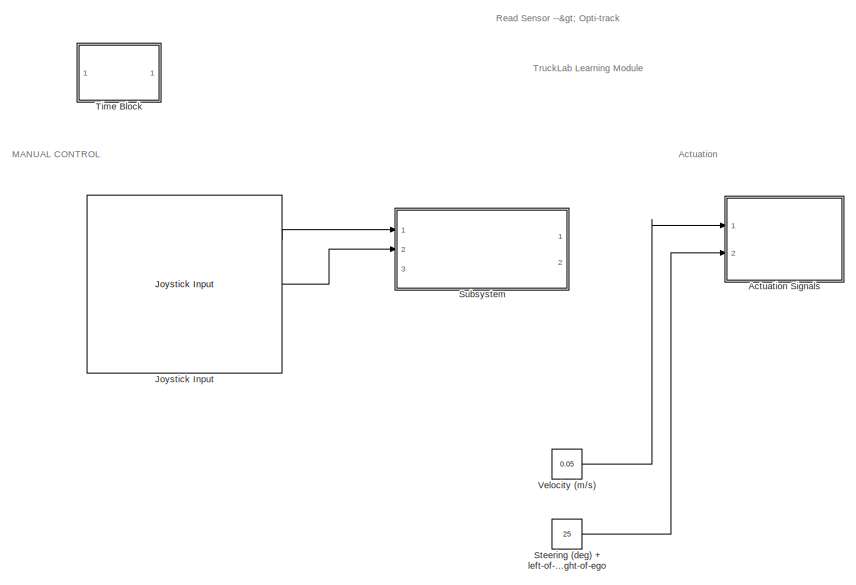
[diagram: root canvas - part 1/2, left side, full height]
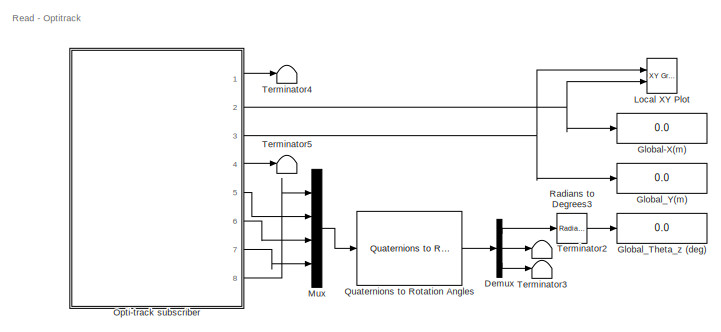
[diagram: root canvas - part 2/2, middle right region]
MODEL slx_036637b306e7
KIND model
CONFIG AbsTol = auto
CONFIG EnableMultiTasking = off
CONFIG FixedStep = auto
CONFIG MaxStep = auto
CONFIG MinStep = auto
CONFIG RelTol = 1e-3
CONFIG SampleTimeConstraint = Unconstrained
CONFIG Solver = FixedStepAuto
CONFIG SolverName = FixedStepAuto
CONFIG StartTime = 0.0
CONFIG StopTime = inf
WORKSPACE source: mxarray member
WORKSPACE SL_ROS_VariableLengthArrays_MaxSizes: object (value not decoded)
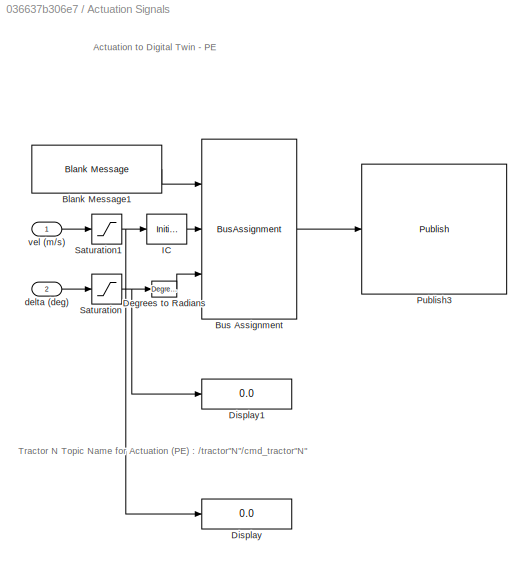
BLOCK [SubSystem] Actuation Signals
  Ports = [2]
  RequestExecContextInheritance = off
BLOCK [Reference] Actuation Signals/Blank Message1  REF=robotlib/Blank Message
  Ports = [0, 1]
  SourceBlock = robotlib/Blank Message
  SourceProductBaseCode = RR
  SourceType = ROS Blank Message
BLOCK [BusAssignment] Actuation Signals/Bus Assignment
  AssignedSignals = Linear.X,Angular.Z
  DialogController = Simulink.DDGSource_BusAssignment
  Ports = [3, 1]
BLOCK [Reference] Actuation Signals/Degrees to Radians  REF=simulink_extras/Transformations/Degrees to
Radians
  Ports = [1, 1]
  SourceBlock = simulink_extras/Transformations/Degrees to\nRadians
  SourceProductBaseCode = SL
  SourceType = DegreesToRadians
BLOCK [Display] Actuation Signals/Display
  Decimation = 1
  Ports = [1]
BLOCK [Display] Actuation Signals/Display1
  Decimation = 1
  Ports = [1]
BLOCK [InitialCondition] Actuation Signals/IC
  Value = 0
BLOCK [Reference] Actuation Signals/Publish3  REF=robotlib/Publish
  Ports = [1]
  SourceBlock = robotlib/Publish
  SourceProductBaseCode = RR
  SourceType = ROS Publish
BLOCK [Saturate] Actuation Signals/Saturation
  LowerLimit = -25
  UpperLimit = 25
BLOCK [Saturate] Actuation Signals/Saturation1
  LowerLimit = -0.28
  UpperLimit = 0.28
BLOCK [Inport] Actuation Signals/delta (deg)
  Port = 2
BLOCK [Inport] Actuation Signals/vel (m//s)
BLOCK [Demux] Demux
  Outputs = 3
  Ports = [1, 3]
BLOCK [Display] Global-X(m)
  Decimation = 1
  Ports = [1]
BLOCK [Display] Global_Theta_z (deg)
  Decimation = 1
  Ports = [1]
BLOCK [Display] Global_Y(m)
  Decimation = 1
  Ports = [1]
BLOCK [Reference] Joystick Input  REF=vrlib/Joystick Input
  Commented = on
  Ports = [0, 3]
  SourceBlock = vrlib/Joystick Input
  SourceProductBaseCode = SL
  SourceType = Joystick Input
BLOCK [Reference] Local XY Plot  REF=simulink/Sinks/XY Graph
  Ports = [2]
  SourceBlock = simulink/Sinks/XY Graph
  SourceProductBaseCode = SL
  SourceType = XY scope.
BLOCK [Mux] Mux
  DisplayOption = bar
  Ports = [4, 1]
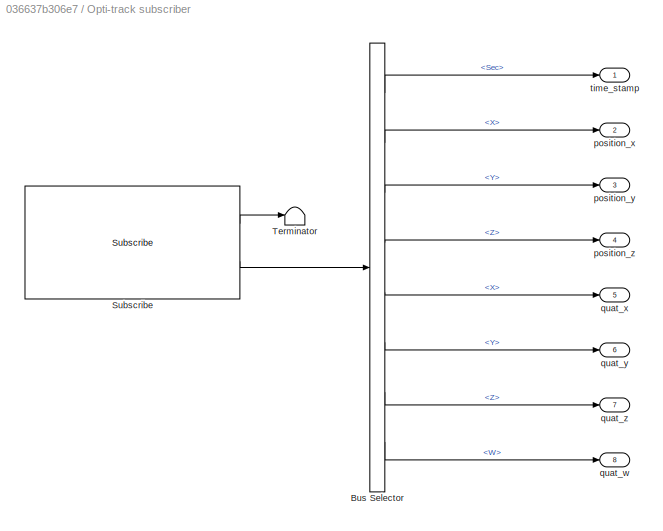
BLOCK [SubSystem] Opti-track subscriber
  Ports = [0, 8]
  RequestExecContextInheritance = off
BLOCK [BusSelector] Opti-track subscriber/Bus Selector
  OutputSignals = Header.Stamp.Sec,Pose.Position.X,Pose.Position.Y,Pose.Position.Z,Pose.Orientation.X,Pose.Orientation.Y,Pose.Orientation.Z,Pose.Orientation.W
  Ports = [1, 8]
BLOCK [Reference] Opti-track subscriber/Subscribe  REF=robotlib/Subscribe
  Ports = [0, 2]
  SourceBlock = robotlib/Subscribe
  SourceProductBaseCode = RR
  SourceType = ROS Subscribe
BLOCK [Terminator] Opti-track subscriber/Terminator
BLOCK [Outport] Opti-track subscriber/position_x
  Port = 2
BLOCK [Outport] Opti-track subscriber/position_y
  Port = 3
BLOCK [Outport] Opti-track subscriber/position_z
  Port = 4
BLOCK [Outport] Opti-track subscriber/quat_w
  Port = 8
BLOCK [Outport] Opti-track subscriber/quat_x
  Port = 5
BLOCK [Outport] Opti-track subscriber/quat_y
  Port = 6
BLOCK [Outport] Opti-track subscriber/quat_z
  Port = 7
BLOCK [Outport] Opti-track subscriber/time_stamp
BLOCK [Reference] Quaternions to Rotation Angles  REF=sharedtransform/Quaternions to Rotation Angles
  AttributesFormatString = Rotation Order: %<rotationOrder>
  Ports = [1, 1]
  SourceBlock = sharedtransform/Quaternions to Rotation Angles
  SourceProductBaseCode = AE,PW,MT,VE,VP
  SourceType = Quat2Ang
BLOCK [Reference] Radians to Degrees3  REF=simulink_extras/Transformations/Radians
to Degrees
  Ports = [1, 1]
  SourceBlock = simulink_extras/Transformations/Radians\nto Degrees
  SourceProductBaseCode = SL
  SourceType = RadiansToDegrees
BLOCK [Constant] Steering (deg) + left-of-ego - right-of-ego
  Value = 25
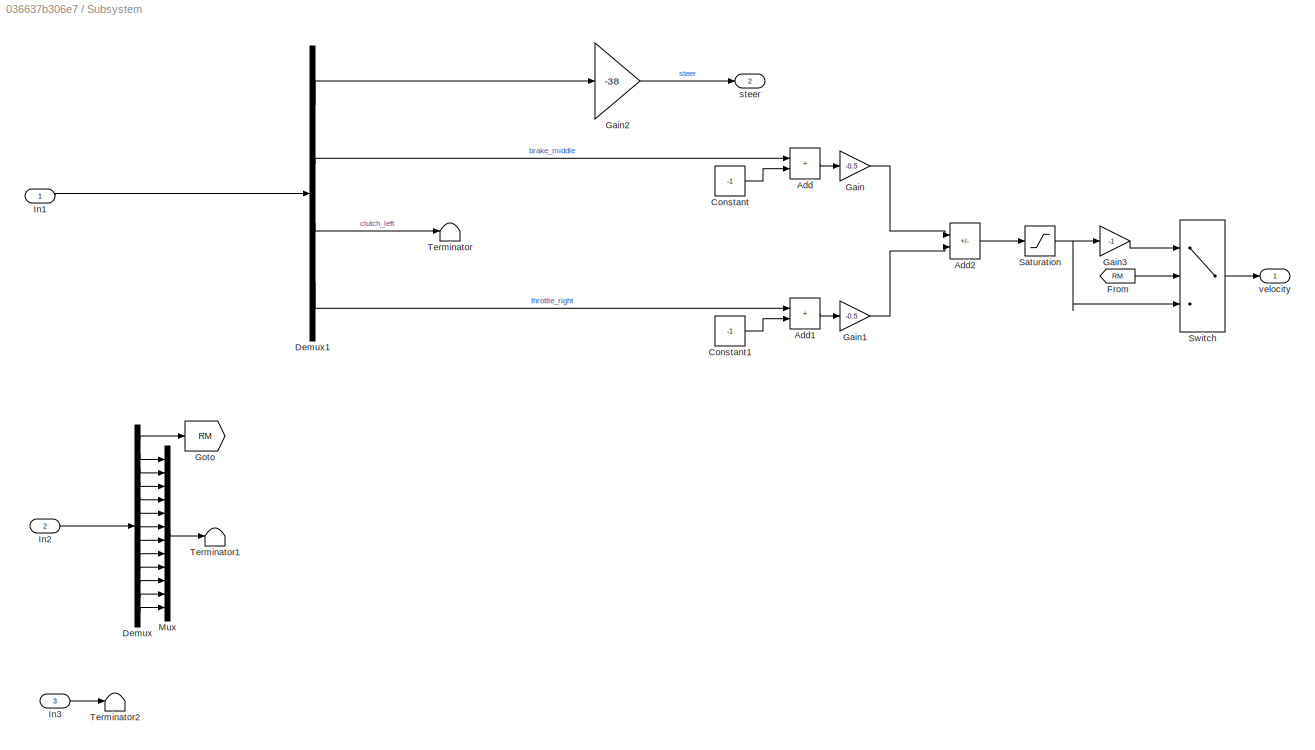
BLOCK [SubSystem] Subsystem
  Commented = on
  Ports = [3, 2]
  RequestExecContextInheritance = off
BLOCK [Sum] Subsystem/Add
  IconShape = rectangular
  Ports = [2, 1]
BLOCK [Sum] Subsystem/Add1
  IconShape = rectangular
  Ports = [2, 1]
BLOCK [Sum] Subsystem/Add2
  IconShape = rectangular
  Inputs = -+
  Ports = [2, 1]
BLOCK [Constant] Subsystem/Constant
  Value = -1
BLOCK [Constant] Subsystem/Constant1
  Value = -1
BLOCK [Demux] Subsystem/Demux
  Outputs = 13
  Ports = [1, 13]
BLOCK [Demux] Subsystem/Demux1
  Ports = [1, 4]
BLOCK [From] Subsystem/From
  GotoTag = RM
BLOCK [Gain] Subsystem/Gain
  Gain = -0.5
BLOCK [Gain] Subsystem/Gain1
  Gain = -0.5
BLOCK [Gain] Subsystem/Gain2
  Gain = -38
BLOCK [Gain] Subsystem/Gain3
  Gain = -1
BLOCK [Goto] Subsystem/Goto
  GotoTag = RM
BLOCK [Inport] Subsystem/In1
BLOCK [Inport] Subsystem/In2
  Port = 2
BLOCK [Inport] Subsystem/In3
  Port = 3
BLOCK [Mux] Subsystem/Mux
  DisplayOption = bar
  Inputs = 12
  Ports = [12, 1]
BLOCK [Saturate] Subsystem/Saturation
  LowerLimit = 0
  UpperLimit = 5
BLOCK [Switch] Subsystem/Switch
  InputSameDT = off
  SaturateOnIntegerOverflow = off
  Threshold = 1
BLOCK [Terminator] Subsystem/Terminator
BLOCK [Terminator] Subsystem/Terminator1
BLOCK [Terminator] Subsystem/Terminator2
BLOCK [Outport] Subsystem/steer
  Port = 2
BLOCK [Outport] Subsystem/velocity
BLOCK [Terminator] Terminator2
BLOCK [Terminator] Terminator3
BLOCK [Terminator] Terminator4
BLOCK [Terminator] Terminator5
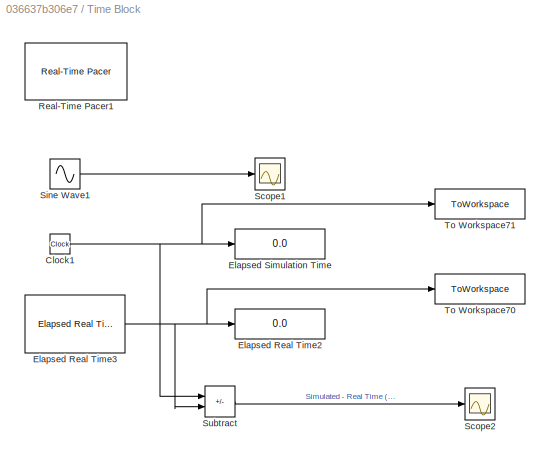
BLOCK [SubSystem] Time Block
  Ports = []
  RequestExecContextInheritance = off
BLOCK [Clock] Time Block/Clock1
BLOCK [Display] Time Block/Elapsed Real Time2
  Decimation = 2
  Ports = [1]
BLOCK [Reference] Time Block/Elapsed Real Time3  REF=realtime_pacer_lib/Elapsed Real Time
  Ports = [0, 1]
  SourceBlock = realtime_pacer_lib/Elapsed Real Time
  SourceType = RealTime_Elapsed
BLOCK [Display] Time Block/Elapsed Simulation Time
  Decimation = 2
  Ports = [1]
BLOCK [Reference] Time Block/Real-Time Pacer1  REF=realtime_pacer_lib/Real-Time Pacer
  Ports = []
  SourceBlock = realtime_pacer_lib/Real-Time Pacer
  SourceType = RealTime_Pacer
BLOCK [Scope] Time Block/Scope1
  Floating = off
  NumInputPorts = 1
  Ports = [1]
  ScopeSpecificationString = Simulink.scopes.TimeScopeBlockCfg('CurrentConfiguration', extmgr.ConfigurationSet(extmgr.Configuration('Core','General UI',true),extmgr.Configuration('Core','Source UI',true),extmgr.Configuration('Sources','WiredSimulink',true,'DataLoggingVariableName','ScopeData1','DataLoggingSaveFormat','StructureWithTime','DataLoggingLimitDataPoints',true,'DataLoggingDecimation','1','DataLoggingDecimateData',tr...<+911ch>
BLOCK [Scope] Time Block/Scope2
  Floating = off
  NumInputPorts = 1
  Ports = [1]
  ScopeSpecificationString = Simulink.scopes.TimeScopeBlockCfg('CurrentConfiguration', extmgr.ConfigurationSet(extmgr.Configuration('Core','General UI',true),extmgr.Configuration('Core','Source UI',true),extmgr.Configuration('Sources','WiredSimulink',true,'DataLoggingSaveFormat','StructureWithTime','DataLoggingLimitDataPoints',true,'DataLoggingDecimation','1','DataLoggingDecimateData',true,'DataLoggingVariableName','ScopeData...<+1641ch>
BLOCK [Sin] Time Block/Sine Wave1
  Frequency = 2*pi*0.5
  Ports = [0, 1]
  SampleTime = 0
BLOCK [Sum] Time Block/Subtract
  IconShape = rectangular
  Inputs = +-
  Ports = [2, 1]
BLOCK [ToWorkspace] Time Block/To Workspace70
  FixptAsFi = on
  MaxDataPoints = inf
  Ports = [1]
  SampleTime = -1
  VariableName = time_real
BLOCK [ToWorkspace] Time Block/To Workspace71
  FixptAsFi = on
  MaxDataPoints = inf
  Ports = [1]
  SampleTime = -1
  VariableName = time
BLOCK [Constant] Velocity (m//s)
  Value = 0.05
ANNOTATION (root): TruckLab Learning Module
ANNOTATION (root): Read Sensor --> Opti-track
ANNOTATION (root): Actuation
ANNOTATION (root): MANUAL CONTROL
ANNOTATION (root): Read - Optitrack
ANNOTATION Actuation Signals: Actuation to Digital Twin - PE
ANNOTATION Actuation Signals: Tractor N Topic Name for Actuation (PE) : /tractor"N"/cmd_tractor"N"
LINE Actuation Signals/Blank Message1:1 -> Actuation Signals/Bus Assignment:1
LINE Actuation Signals/Bus Assignment:1 -> Actuation Signals/Publish3:1
LINE Actuation Signals/Degrees to Radians:1 -> Actuation Signals/Bus Assignment:3
LINE Actuation Signals/IC:1 -> Actuation Signals/Bus Assignment:2
NET Actuation Signals/Saturation1:1 -> Actuation Signals/Display:1, Actuation Signals/IC:1
NET Actuation Signals/Saturation:1 -> Actuation Signals/Degrees to Radians:1, Actuation Signals/Display1:1
LINE Actuation Signals/delta (deg):1 -> Actuation Signals/Saturation:1
LINE Actuation Signals/vel (m//s):1 -> Actuation Signals/Saturation1:1
LINE Demux:1 -> Radians to Degrees3:1
LINE Demux:2 -> Terminator2:1
LINE Demux:3 -> Terminator3:1
LINE Joystick Input:1 -> Subsystem:1
LINE Joystick Input:2 -> Subsystem:2
LINE Mux:1 -> Quaternions to Rotation Angles:1
LINE Opti-track subscriber/Bus Selector:1 -> Opti-track subscriber/time_stamp:1
LINE Opti-track subscriber/Bus Selector:2 -> Opti-track subscriber/position_x:1
LINE Opti-track subscriber/Bus Selector:3 -> Opti-track subscriber/position_y:1
LINE Opti-track subscriber/Bus Selector:4 -> Opti-track subscriber/position_z:1
LINE Opti-track subscriber/Bus Selector:5 -> Opti-track subscriber/quat_x:1
LINE Opti-track subscriber/Bus Selector:6 -> Opti-track subscriber/quat_y:1
LINE Opti-track subscriber/Bus Selector:7 -> Opti-track subscriber/quat_z:1
LINE Opti-track subscriber/Bus Selector:8 -> Opti-track subscriber/quat_w:1
LINE Opti-track subscriber/Subscribe:1 -> Opti-track subscriber/Terminator:1
LINE Opti-track subscriber/Subscribe:2 -> Opti-track subscriber/Bus Selector:1
LINE Opti-track subscriber:1 -> Terminator4:1
NET Opti-track subscriber:2 -> Global-X(m):1, Local XY Plot:2
NET Opti-track subscriber:3 -> Global_Y(m):1, Local XY Plot:1
LINE Opti-track subscriber:4 -> Terminator5:1
LINE Opti-track subscriber:5 -> Mux:2
LINE Opti-track subscriber:6 -> Mux:3
LINE Opti-track subscriber:7 -> Mux:4
LINE Opti-track subscriber:8 -> Mux:1
LINE Quaternions to Rotation Angles:1 -> Demux:1
LINE Radians to Degrees3:1 -> Global_Theta_z (deg):1
LINE Steering (deg) + left-of-ego - right-of-ego:1 -> Actuation Signals:2
LINE Subsystem/Add1:1 -> Subsystem/Gain1:1
LINE Subsystem/Add2:1 -> Subsystem/Saturation:1
LINE Subsystem/Add:1 -> Subsystem/Gain:1
LINE Subsystem/Constant1:1 -> Subsystem/Add1:2
LINE Subsystem/Constant:1 -> Subsystem/Add:2
LINE Subsystem/Demux1:1 -> Subsystem/Gain2:1
LINE Subsystem/Demux1:2 -> Subsystem/Add:1
LINE Subsystem/Demux1:3 -> Subsystem/Terminator:1
LINE Subsystem/Demux1:4 -> Subsystem/Add1:1
LINE Subsystem/Demux:1 -> Subsystem/Goto:1
LINE Subsystem/Demux:10 -> Subsystem/Mux:9
LINE Subsystem/Demux:11 -> Subsystem/Mux:10
LINE Subsystem/Demux:12 -> Subsystem/Mux:11
LINE Subsystem/Demux:13 -> Subsystem/Mux:12
LINE Subsystem/Demux:2 -> Subsystem/Mux:1
LINE Subsystem/Demux:3 -> Subsystem/Mux:2
LINE Subsystem/Demux:4 -> Subsystem/Mux:3
LINE Subsystem/Demux:5 -> Subsystem/Mux:4
LINE Subsystem/Demux:6 -> Subsystem/Mux:5
LINE Subsystem/Demux:7 -> Subsystem/Mux:6
LINE Subsystem/Demux:8 -> Subsystem/Mux:7
LINE Subsystem/Demux:9 -> Subsystem/Mux:8
LINE Subsystem/From:1 -> Subsystem/Switch:2
LINE Subsystem/Gain1:1 -> Subsystem/Add2:2
LINE Subsystem/Gain2:1 -> Subsystem/steer:1
LINE Subsystem/Gain3:1 -> Subsystem/Switch:1
LINE Subsystem/Gain:1 -> Subsystem/Add2:1
LINE Subsystem/In1:1 -> Subsystem/Demux1:1
LINE Subsystem/In2:1 -> Subsystem/Demux:1
LINE Subsystem/In3:1 -> Subsystem/Terminator2:1
LINE Subsystem/Mux:1 -> Subsystem/Terminator1:1
NET Subsystem/Saturation:1 -> Subsystem/Gain3:1, Subsystem/Switch:3
LINE Subsystem/Switch:1 -> Subsystem/velocity:1
NET Time Block/Clock1:1 -> Time Block/Elapsed Simulation Time:1, Time Block/Subtract:1, Time Block/To Workspace71:1
NET Time Block/Elapsed Real Time3:1 -> Time Block/Elapsed Real Time2:1, Time Block/Subtract:2, Time Block/To Workspace70:1
LINE Time Block/Sine Wave1:1 -> Time Block/Scope1:1
LINE Time Block/Subtract:1 -> Time Block/Scope2:1
LINE Velocity (m//s):1 -> Actuation Signals:1
note: NET lines group one-source signal fan-out (src -> all destinations, sorted); 1:1 wires keep LINE
